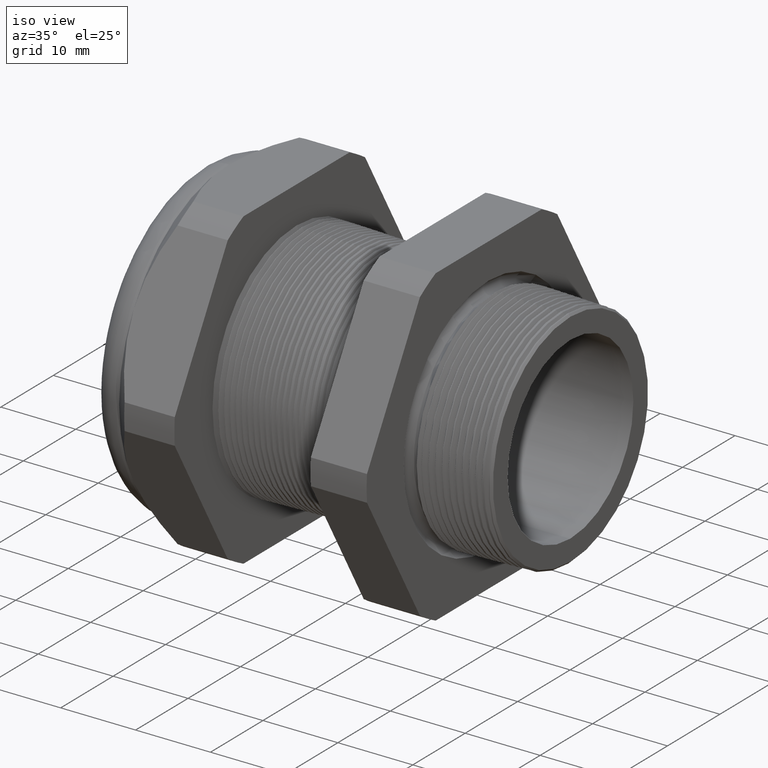
[diagram: clean part render]
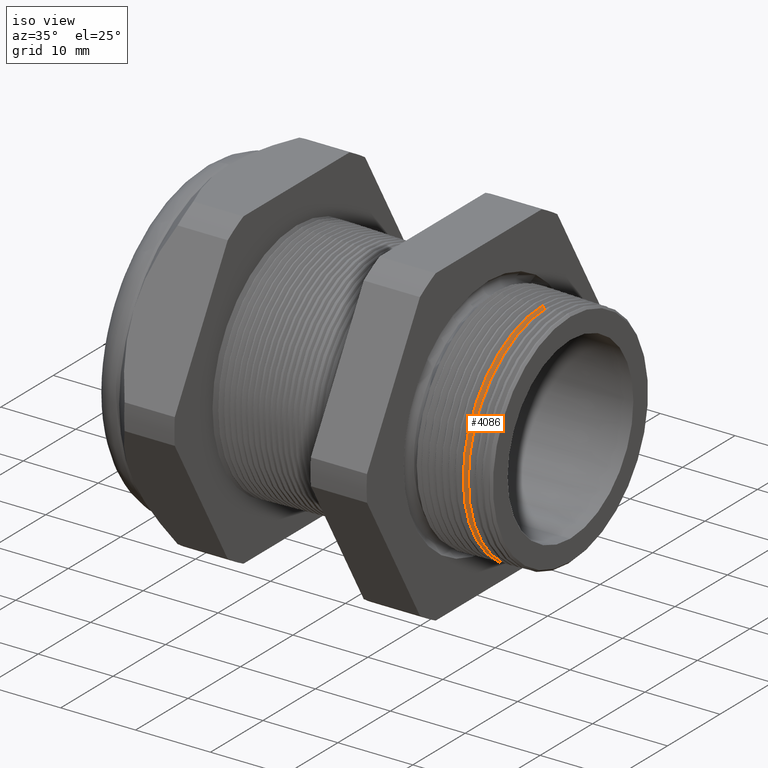
[diagram: same view with one face highlighted and labeled with its STEP entity id]
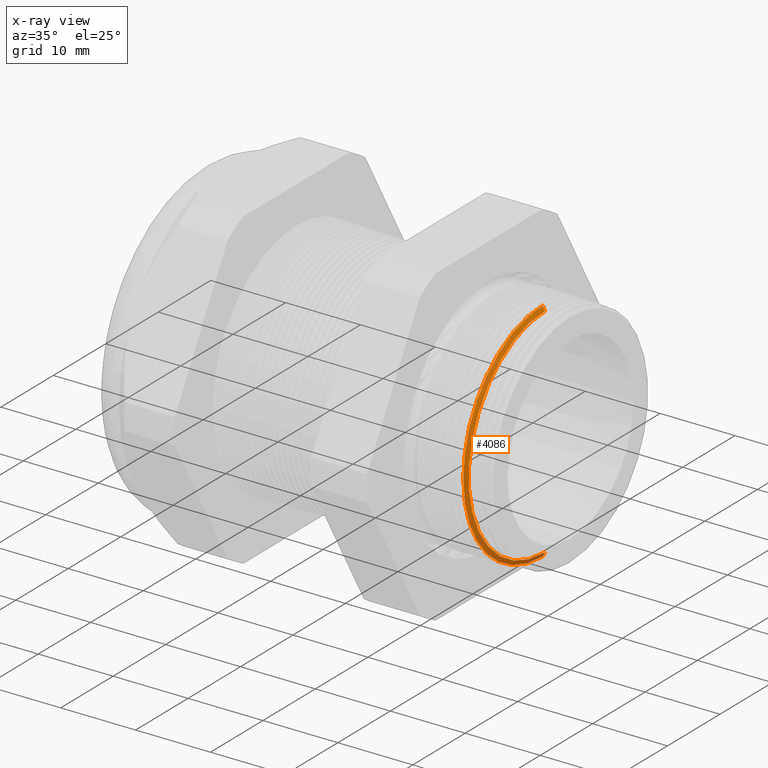
[diagram: x-ray of the same camera — body ghosted, the highlighted face saturated]
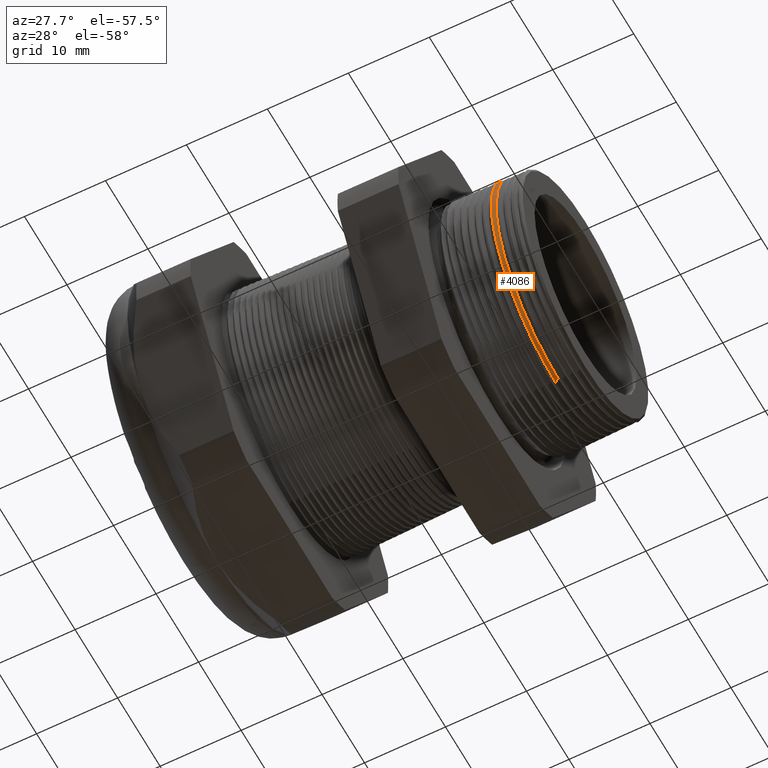
[diagram: same view with one face highlighted and labeled with its STEP entity id]
A machine part, iso view. The second image highlights one B-rep face of the part: STEP entity #4086.
The next image is the same camera in x-ray: the body ghosted, the highlighted face saturated — about 0% of this face is hidden behind the body in this view.
A second angle (auxiliary view) of the same face is appended — the face is thin or edge-on in the first view.
In plain terms, the highlighted conical surface has half-angle 61.5 deg.
Its self-contained STEP definition (entity closure, byte-faithful):
#1170 = DIRECTION ( 'NONE',  ( 0.0000000000000000000, 0.0000000000000000000, -1.000000000000000000 ) ) ;
#1171 = DIRECTION ( 'NONE',  ( 1.000000000000000000, 0.0000000000000000000, 0.0000000000000000000 ) ) ;
#1172 = AXIS2_PLACEMENT_3D ( 'NONE', #1180, #1171, #1170 ) ;
#1173 = CIRCLE ( 'NONE', #1172, 0.5731008538869457600 ) ;
#1176 = DIRECTION ( 'NONE',  ( 0.0000000000000000000, 0.0000000000000000000, 1.000000000000000000 ) ) ;
#1177 = DIRECTION ( 'NONE',  ( -1.000000000000000000, 0.0000000000000000000, 0.0000000000000000000 ) ) ;
#1178 = CARTESIAN_POINT ( 'NONE',  ( -0.02999999999999981500, 0.0000000000000000000, 0.0000000000000000000 ) ) ;
#1179 = AXIS2_PLACEMENT_3D ( 'NONE', #1178, #1177, #1176 ) ;
#1180 = CARTESIAN_POINT ( 'NONE',  ( -0.01347073567907505900, 0.0000000000000000000, 0.0000000000000000000 ) ) ;
#1181 = CONICAL_SURFACE ( 'NONE', #1179, 0.6035439716807757800, 1.073377489976501800 ) ;
#1186 = FACE_OUTER_BOUND ( 'NONE', #4087, .T. ) ;
#1722 = EDGE_CURVE ( 'NONE', #1744, #1992, #4235, .T. ) ;
#1723 = VERTEX_POINT ( 'NONE', #4231 ) ;
#1744 = VERTEX_POINT ( 'NONE', #4249 ) ;
#1992 = VERTEX_POINT ( 'NONE', #4750 ) ;
#3116 = EDGE_CURVE ( 'NONE', #3225, #1992, #6919, .T. ) ;
#3224 = EDGE_CURVE ( 'NONE', #1723, #3225, #7144, .T. ) ;
#3225 = VERTEX_POINT ( 'NONE', #7140 ) ;
#4086 = ADVANCED_FACE ( 'NONE', ( #1186 ), #1181, .T. ) ;
#4087 = EDGE_LOOP ( 'NONE', ( #4088, #4089, #4091, #4144 ) ) ;
#4088 = ORIENTED_EDGE ( 'NONE', *, *, #1722, .F. ) ;
#4089 = ORIENTED_EDGE ( 'NONE', *, *, #4090, .F. ) ;
#4090 = EDGE_CURVE ( 'NONE', #1723, #1744, #1173, .T. ) ;
#4091 = ORIENTED_EDGE ( 'NONE', *, *, #3224, .T. ) ;
#4144 = ORIENTED_EDGE ( 'NONE', *, *, #3116, .T. ) ;
#4231 = CARTESIAN_POINT ( 'NONE',  ( -0.01347073567907505900, 0.0000000000000000000, 0.5731008538869457600 ) ) ;
#4232 = DIRECTION ( 'NONE',  ( -0.4771587602596179000, 1.076240564057388100E-016, -0.8788171126619600500 ) ) ;
#4233 = VECTOR ( 'NONE', #4232, 39.37007874015748900 ) ;
#4234 = CARTESIAN_POINT ( 'NONE',  ( -0.02999999999999981500, 7.391281930635429700E-017, -0.6035439716807757800 ) ) ;
#4235 = LINE ( 'NONE', #4234, #4233 ) ;
#4249 = CARTESIAN_POINT ( 'NONE',  ( -0.01347073567907505900, 7.159328162549856400E-017, -0.5731008538869457600 ) ) ;
#4750 = CARTESIAN_POINT ( 'NONE',  ( -0.02596160015483812600, 7.301522476626821600E-017, -0.5961061644197952500 ) ) ;
#6911 = DIRECTION ( 'NONE',  ( 0.0000000000000000000, 0.0000000000000000000, 1.000000000000000000 ) ) ;
#6912 = DIRECTION ( 'NONE',  ( 1.000000000000000000, 0.0000000000000000000, 0.0000000000000000000 ) ) ;
#6913 = CARTESIAN_POINT ( 'NONE',  ( -0.02596160015483812600, 0.0000000000000000000, 0.0000000000000000000 ) ) ;
#6914 = AXIS2_PLACEMENT_3D ( 'NONE', #6913, #6912, #6911 ) ;
#6919 = CIRCLE ( 'NONE', #6914, 0.5961061644197952500 ) ;
#7140 = CARTESIAN_POINT ( 'NONE',  ( -0.02596160015483812600, 0.0000000000000000000, 0.5961061644197952500 ) ) ;
#7141 = DIRECTION ( 'NONE',  ( -0.4771587602596179000, 0.0000000000000000000, 0.8788171126619600500 ) ) ;
#7142 = VECTOR ( 'NONE', #7141, 39.37007874015748900 ) ;
#7143 = CARTESIAN_POINT ( 'NONE',  ( -0.02999999999999981500, 0.0000000000000000000, 0.6035439716807757800 ) ) ;
#7144 = LINE ( 'NONE', #7143, #7142 ) ;